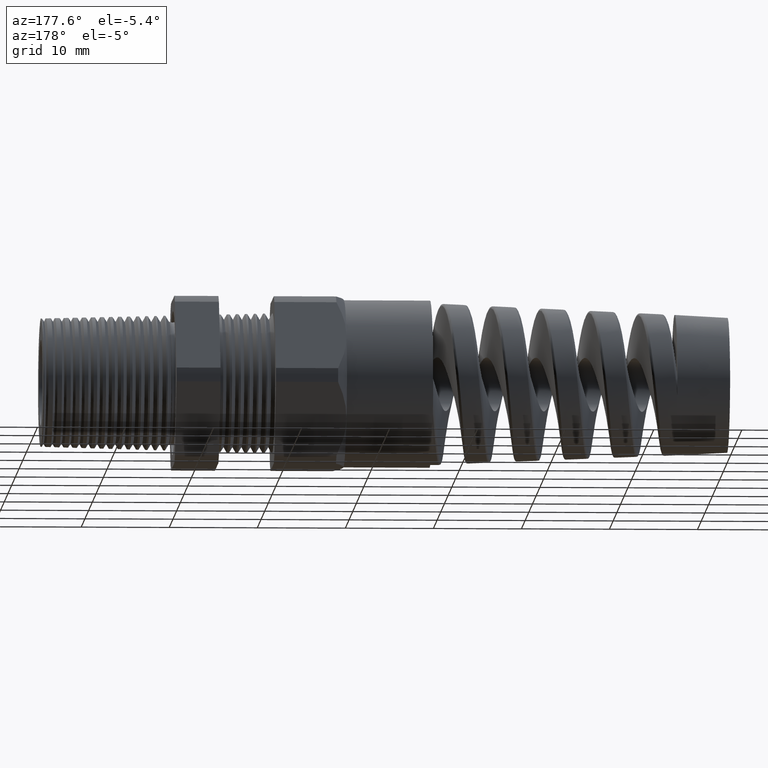
[diagram: clean part render]
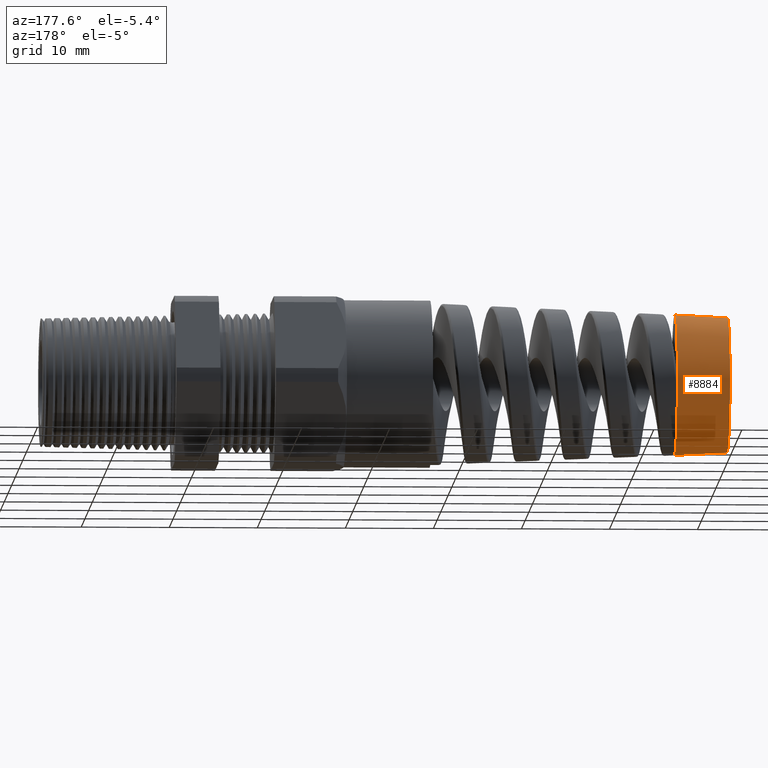
[diagram: same view with one face highlighted and labeled with its STEP entity id]
A machine part, auxiliary view. The second image highlights one B-rep face of the part: STEP entity #8884.
In plain terms, the highlighted conical surface has half-angle 3 deg.
Its self-contained STEP definition (entity closure, byte-faithful):
#212 = EDGE_CURVE ( 'NONE', #215, #640, #9951, .T. ) ;
#215 = VERTEX_POINT ( 'NONE', #9938 ) ;
#640 = VERTEX_POINT ( 'NONE', #10511 ) ;
#1434 = DIRECTION ( 'NONE',  ( 0.0000000000000000000, 0.0000000000000000000, 1.000000000000000000 ) ) ;
#1435 = DIRECTION ( 'NONE',  ( 1.000000000000000000, 0.0000000000000000000, 0.0000000000000000000 ) ) ;
#1436 = CARTESIAN_POINT ( 'NONE',  ( -2.553780000000000200, 0.0000000000000000000, 0.0000000000000000000 ) ) ;
#1437 = AXIS2_PLACEMENT_3D ( 'NONE', #1436, #1435, #1434 ) ;
#1438 = CONICAL_SURFACE ( 'NONE', #1437, 0.3150194698508069800, 0.05235987755983000100 ) ;
#1439 = FACE_OUTER_BOUND ( 'NONE', #8885, .T. ) ;
#1468 = DIRECTION ( 'NONE',  ( 0.0000000000000000000, 0.0000000000000000000, 1.000000000000000000 ) ) ;
#1469 = DIRECTION ( 'NONE',  ( -1.000000000000000000, 0.0000000000000000000, 0.0000000000000000000 ) ) ;
#1470 = CARTESIAN_POINT ( 'NONE',  ( -2.790000472440945100, 0.0000000000000000000, 0.0000000000000000000 ) ) ;
#1471 = AXIS2_PLACEMENT_3D ( 'NONE', #1470, #1469, #1468 ) ;
#1472 = CIRCLE ( 'NONE', #1471, 0.3026396794689861800 ) ;
#1593 = DIRECTION ( 'NONE',  ( 0.0000000000000000000, 0.0000000000000000000, 1.000000000000000000 ) ) ;
#1608 = DIRECTION ( 'NONE',  ( -1.000000000000000000, 0.0000000000000000000, 0.0000000000000000000 ) ) ;
#1609 = CARTESIAN_POINT ( 'NONE',  ( -2.553780000000000200, 0.0000000000000000000, 0.0000000000000000000 ) ) ;
#1610 = AXIS2_PLACEMENT_3D ( 'NONE', #1609, #1608, #1593 ) ;
#1611 = CIRCLE ( 'NONE', #1610, 0.3150194698508069800 ) ;
#7921 = CARTESIAN_POINT ( 'NONE',  ( -2.790000472440945100, 0.0000000000000000000, 0.3026396794689861800 ) ) ;
#7922 = CARTESIAN_POINT ( 'NONE',  ( -2.790000472440945100, -3.782071500892808600E-017, -0.3026396794689861800 ) ) ;
#7923 = DIRECTION ( 'NONE',  ( 0.9986295347545738300, -6.409306129323724800E-018, -0.05233595624294395300 ) ) ;
#7924 = VECTOR ( 'NONE', #7923, 39.37007874015748900 ) ;
#7925 = CARTESIAN_POINT ( 'NONE',  ( -2.553780000000000200, -3.857875854218868700E-017, -0.3150194698508069800 ) ) ;
#7926 = LINE ( 'NONE', #7925, #7924 ) ;
#7938 = DIRECTION ( 'NONE',  ( 0.9986295347545738300, 0.0000000000000000000, 0.05233595624294395300 ) ) ;
#7939 = VECTOR ( 'NONE', #7938, 39.37007874015748900 ) ;
#7940 = CARTESIAN_POINT ( 'NONE',  ( -2.553780000000000200, 0.0000000000000000000, 0.3150194698508069800 ) ) ;
#7941 = LINE ( 'NONE', #7940, #7939 ) ;
#7942 = CARTESIAN_POINT ( 'NONE',  ( -2.553780000000000200, 0.0000000000000000000, 0.3150194698508069800 ) ) ;
#8884 = ADVANCED_FACE ( 'NONE', ( #1439 ), #1438, .T. ) ;
#8885 = EDGE_LOOP ( 'NONE', ( #8886, #8941, #8942, #8943, #8945 ) ) ;
#8886 = ORIENTED_EDGE ( 'NONE', *, *, #11536, .F. ) ;
#8895 = EDGE_CURVE ( 'NONE', #11539, #11537, #1472, .T. ) ;
#8941 = ORIENTED_EDGE ( 'NONE', *, *, #8895, .F. ) ;
#8942 = ORIENTED_EDGE ( 'NONE', *, *, #11531, .T. ) ;
#8943 = ORIENTED_EDGE ( 'NONE', *, *, #8944, .T. ) ;
#8944 = EDGE_CURVE ( 'NONE', #11530, #640, #1611, .T. ) ;
#8945 = ORIENTED_EDGE ( 'NONE', *, *, #212, .F. ) ;
#9938 = CARTESIAN_POINT ( 'NONE',  ( -2.553780000000000200, -3.857875854218868700E-017, -0.3150194698508069800 ) ) ;
#9943 = DIRECTION ( 'NONE',  ( 0.0000000000000000000, 0.0000000000000000000, -1.000000000000000000 ) ) ;
#9944 = DIRECTION ( 'NONE',  ( 1.000000000000000000, 0.0000000000000000000, 0.0000000000000000000 ) ) ;
#9945 = CARTESIAN_POINT ( 'NONE',  ( -2.553780000000000200, 0.0000000000000000000, 0.0000000000000000000 ) ) ;
#9946 = AXIS2_PLACEMENT_3D ( 'NONE', #9945, #9944, #9943 ) ;
#9951 = CIRCLE ( 'NONE', #9946, 0.3150194698511438200 ) ;
#10511 = CARTESIAN_POINT ( 'NONE',  ( -2.553780000000000200, 0.3053292485003098500, -0.07753267953277336000 ) ) ;
#11530 = VERTEX_POINT ( 'NONE', #7942 ) ;
#11531 = EDGE_CURVE ( 'NONE', #11539, #11530, #7941, .T. ) ;
#11536 = EDGE_CURVE ( 'NONE', #11537, #215, #7926, .T. ) ;
#11537 = VERTEX_POINT ( 'NONE', #7922 ) ;
#11539 = VERTEX_POINT ( 'NONE', #7921 ) ;